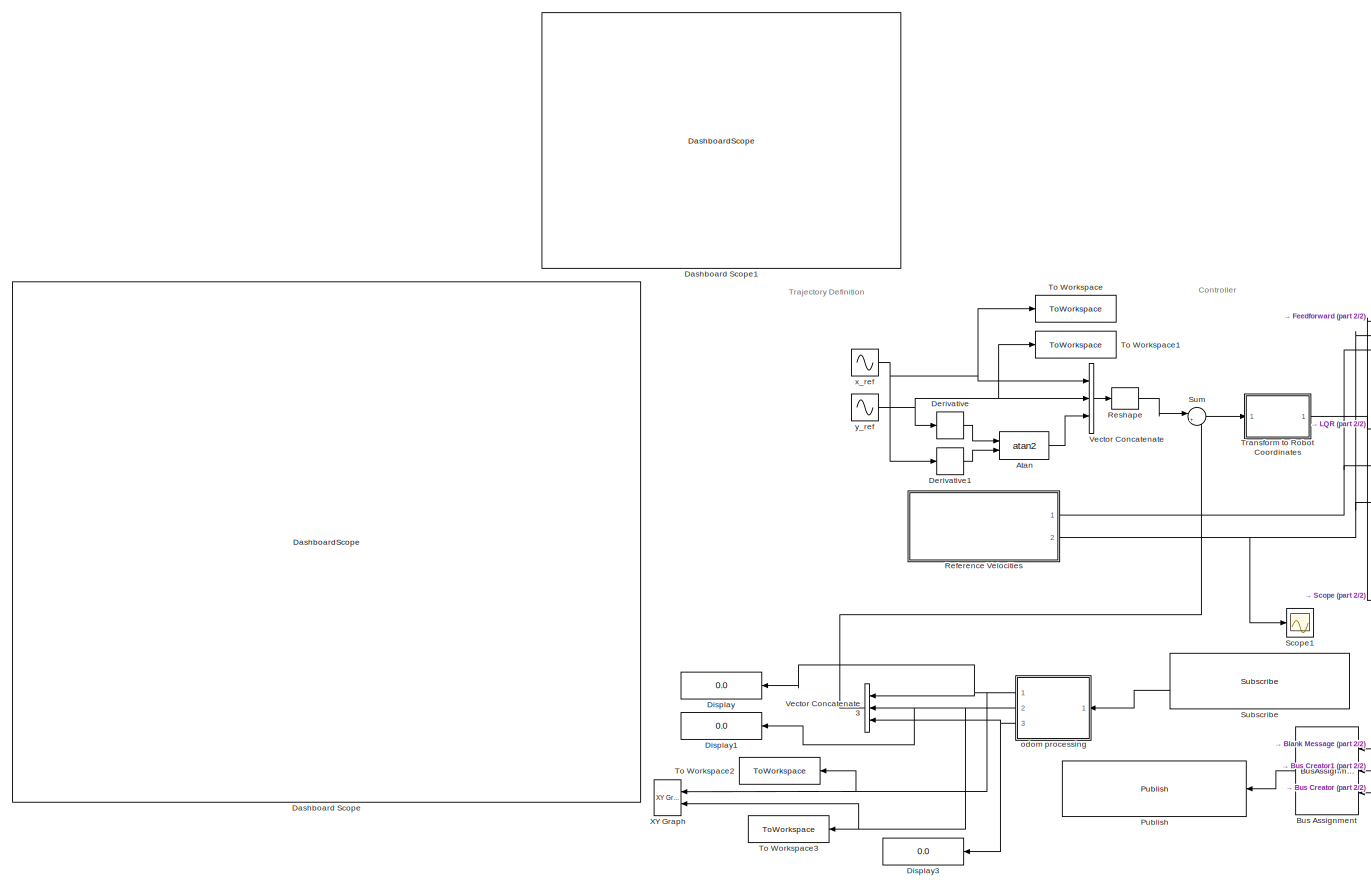
[diagram: root canvas - part 1/2, most of the canvas]
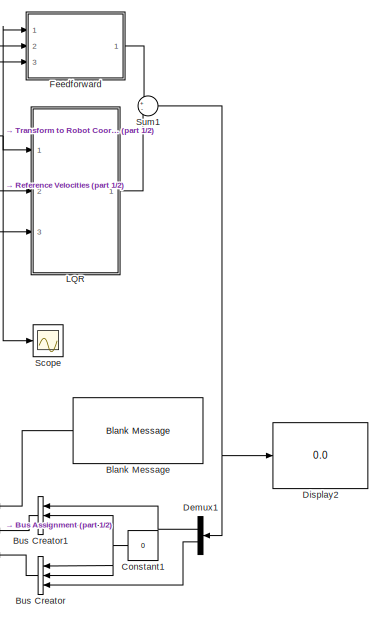
[diagram: root canvas - part 2/2, middle right region]
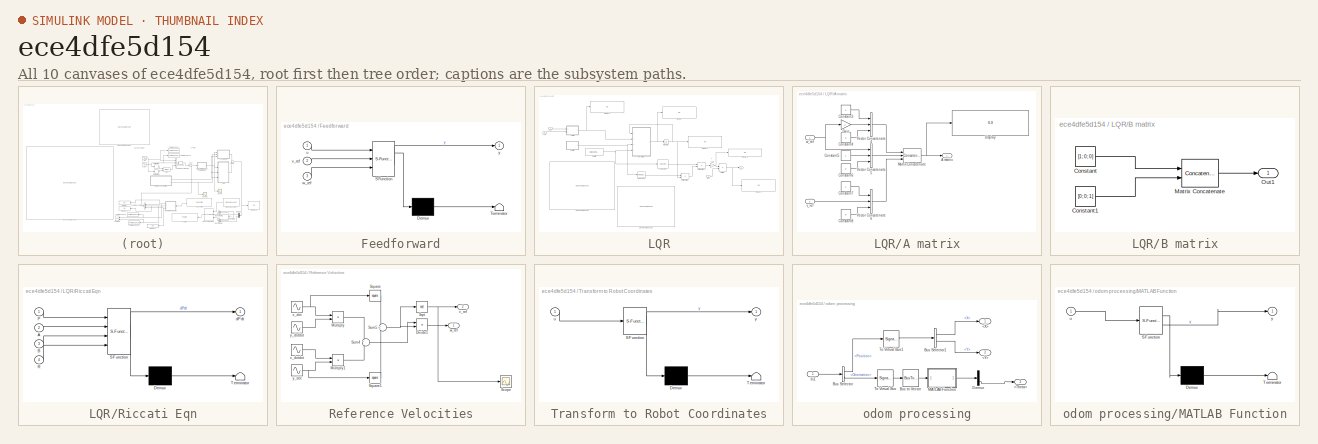
[diagram: thumbnail index - all 10 canvases of the model, root first then tree order]
MODEL slx_ece4dfe5d154
KIND model
CONFIG AbsTol = auto
CONFIG EnableMultiTasking = off
CONFIG FixedStep = auto
CONFIG MaxStep = auto
CONFIG MinStep = auto
CONFIG RelTol = 1e-3
CONFIG SampleTimeConstraint = Unconstrained
CONFIG Solver = VariableStepAuto
CONFIG SolverName = VariableStepAuto
CONFIG StartTime = 0.0
CONFIG StopTime = 15
BLOCK [Trigonometry] Atan
  Operator = atan2
  Ports = [2, 1]
BLOCK [Reference] Blank Message  REF=robotlib/Blank Message
  Ports = [0, 1]
  SourceBlock = robotlib/Blank Message
  SourceProductBaseCode = RR
  SourceType = ROS Blank Message
BLOCK [BusAssignment] Bus Assignment
  AssignedSignals = Linear,Angular
  Ports = [3, 1]
BLOCK [BusCreator] Bus Creator
  DisplayOption = bar
  InheritFromInputs = on
  Inputs = 3
  Ports = [3, 1]
BLOCK [BusCreator] Bus Creator1
  DisplayOption = bar
  InheritFromInputs = on
  Inputs = 3
  Ports = [3, 1]
BLOCK [Constant] Constant1
  Value = 0
BLOCK [DashboardScope] Dashboard Scope
BLOCK [DashboardScope] Dashboard Scope1
BLOCK [Demux] Demux1
  Outputs = 2
  Ports = [1, 2]
BLOCK [Derivative] Derivative
BLOCK [Derivative] Derivative1
BLOCK [Display] Display
  Decimation = 1
  Ports = [1]
BLOCK [Display] Display1
  Decimation = 1
  Ports = [1]
BLOCK [Display] Display2
  Decimation = 1
  Ports = [1]
BLOCK [Display] Display3
  Decimation = 1
  Ports = [1]
BLOCK [SubSystem] Feedforward
  ErrorFcn = Stateflow.Translate.translate
  PermitHierarchicalResolution = ExplicitOnly
  Ports = [3, 1]
  RequestExecContextInheritance = off
  SFBlockType = MATLAB Function
  TreatAsAtomicUnit = on
BLOCK [Demux] Feedforward/ Demux 
  Outputs = 1
  Ports = [1, 1]
BLOCK [S-Function] Feedforward/ SFunction 
  EnableBusSupport = on
  FunctionName = sf_sfun
  PortCounts = [3 2]
  Ports = [3, 2]
  SFcnIsStateOwnerBlock = off
  SFunctionDeploymentMode = off
  Tag = Stateflow S-Function 3
BLOCK [Terminator] Feedforward/ Terminator 
BLOCK [Inport] Feedforward/u
BLOCK [Inport] Feedforward/v_ref
  Port = 2
BLOCK [Inport] Feedforward/w_ref
  Port = 3
BLOCK [Outport] Feedforward/y
  VectorParamsAs1DForOutWhenUnconnected = off
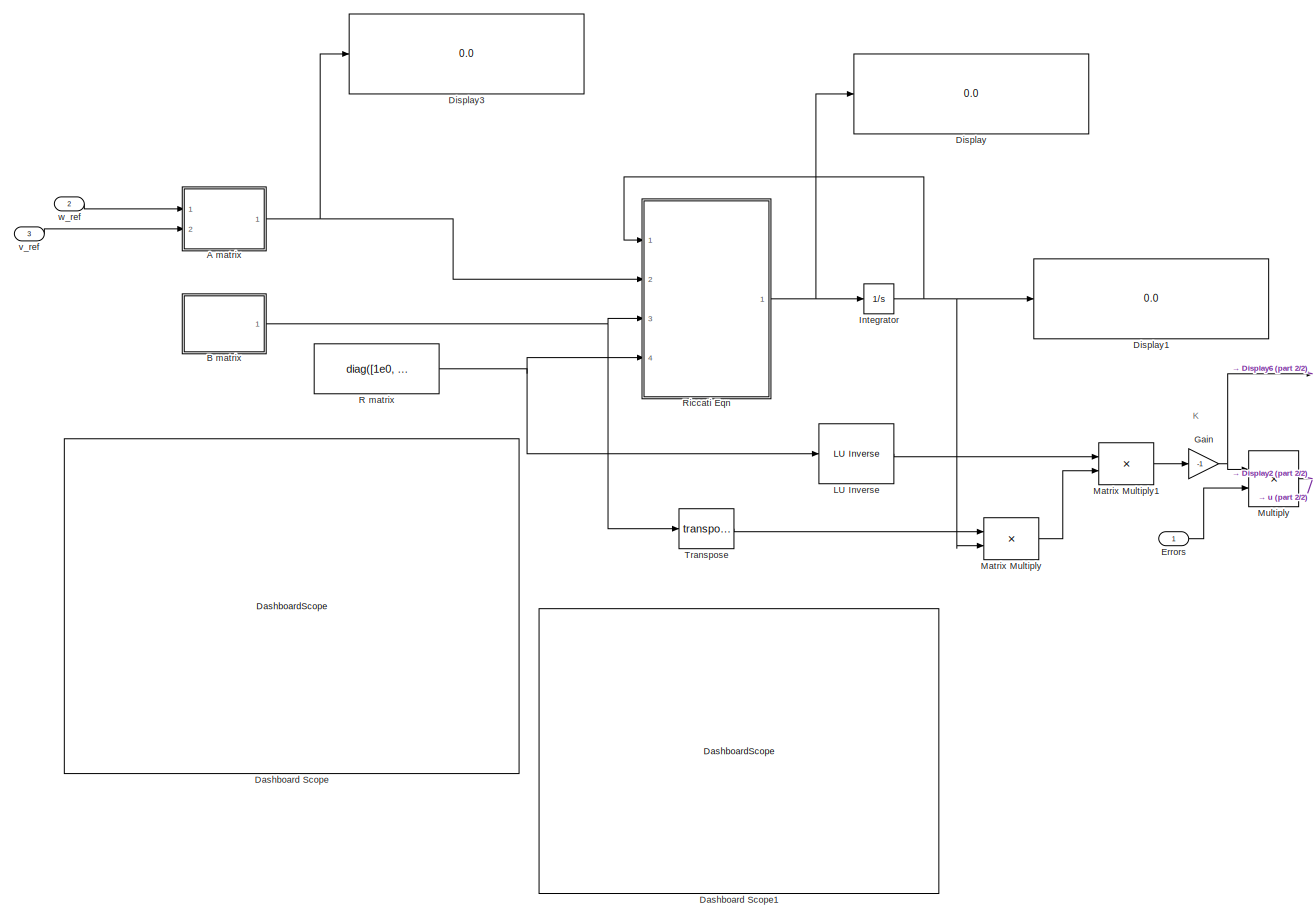
[diagram: LQR - part 1/2, most of the canvas]
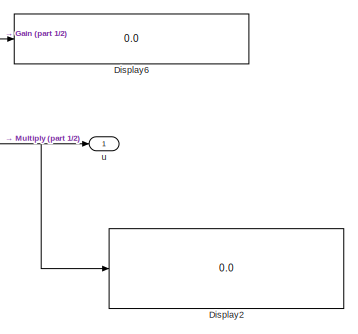
[diagram: LQR - part 2/2, middle right region]
BLOCK [SubSystem] LQR
  Ports = [3, 1]
  RequestExecContextInheritance = off
BLOCK [Reference] LQR/ LU Inverse  REF=dspinverses/ LU Inverse
  Ports = [1, 1]
  SourceBlock = dspinverses/ LU Inverse
  SourceProductBaseCode = DS
  SourceType = LU Inverse
BLOCK [SubSystem] LQR/A matrix
  Ports = [2, 1]
  RequestExecContextInheritance = off
BLOCK [Outport] LQR/A matrix/A matrix
  VectorParamsAs1DForOutWhenUnconnected = off
BLOCK [Constant] LQR/A matrix/Constant3
BLOCK [Constant] LQR/A matrix/Constant4
  Value = 0
BLOCK [Constant] LQR/A matrix/Constant5
BLOCK [Constant] LQR/A matrix/Constant6
  Value = 0
BLOCK [Constant] LQR/A matrix/Constant7
BLOCK [Constant] LQR/A matrix/Constant8
  Value = 0
BLOCK [Display] LQR/A matrix/Display
  Decimation = 1
  Ports = [1]
BLOCK [Gain] LQR/A matrix/Gain
  Gain = -1
BLOCK [Concatenate] LQR/A matrix/Matrix Concatenate
  ConcatenateDimension = 2
  Mode = Multidimensional array
  NumInputs = 3
  Ports = [3, 1]
BLOCK [Concatenate] LQR/A matrix/Vector Concatenate4
  NumInputs = 3
  Ports = [3, 1]
BLOCK [Concatenate] LQR/A matrix/Vector Concatenate5
  NumInputs = 3
  Ports = [3, 1]
BLOCK [Concatenate] LQR/A matrix/Vector Concatenate6
  NumInputs = 3
  Ports = [3, 1]
BLOCK [Inport] LQR/A matrix/v_ref
  Port = 2
  VarSizeSig = No
BLOCK [Inport] LQR/A matrix/w_ref
BLOCK [SubSystem] LQR/B matrix
  Ports = [0, 1]
  RequestExecContextInheritance = off
BLOCK [Constant] LQR/B matrix/Constant
  Value = [1; 0; 0]
  VectorParams1D = off
BLOCK [Constant] LQR/B matrix/Constant1
  Value = [0; 0; 1]
  VectorParams1D = off
BLOCK [Concatenate] LQR/B matrix/Matrix Concatenate
  ConcatenateDimension = 2
  Mode = Multidimensional array
  Ports = [2, 1]
BLOCK [Outport] LQR/B matrix/Out1
  VectorParamsAs1DForOutWhenUnconnected = off
BLOCK [DashboardScope] LQR/Dashboard Scope
BLOCK [DashboardScope] LQR/Dashboard Scope1
BLOCK [Display] LQR/Display
  Decimation = 1
  Ports = [1]
BLOCK [Display] LQR/Display1
  Decimation = 1
  Ports = [1]
BLOCK [Display] LQR/Display2
  Decimation = 1
  Ports = [1]
BLOCK [Display] LQR/Display3
  Decimation = 1
  Ports = [1]
BLOCK [Display] LQR/Display6
  Decimation = 1
  Ports = [1]
BLOCK [Inport] LQR/Errors
BLOCK [Gain] LQR/Gain
  Gain = -1
BLOCK [Integrator] LQR/Integrator
  Ports = [1, 1]
BLOCK [Product] LQR/Matrix Multiply
  Multiplication = Matrix(*)
  Ports = [2, 1]
BLOCK [Product] LQR/Matrix Multiply1
  Multiplication = Matrix(*)
  Ports = [2, 1]
BLOCK [Product] LQR/Multiply
  Multiplication = Matrix(*)
  Ports = [2, 1]
BLOCK [Constant] LQR/R matrix
  Value = diag([1e0, 1e0])
  VectorParams1D = off
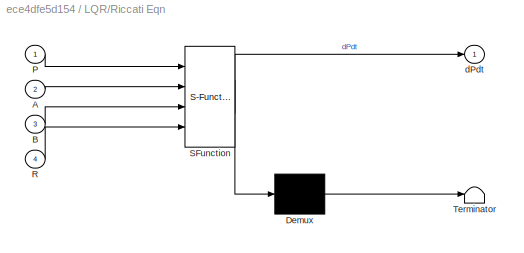
BLOCK [SubSystem] LQR/Riccati Eqn
  ErrorFcn = Stateflow.Translate.translate
  PermitHierarchicalResolution = ExplicitOnly
  Ports = [4, 1]
  RequestExecContextInheritance = off
  SFBlockType = MATLAB Function
  TreatAsAtomicUnit = on
BLOCK [Demux] LQR/Riccati Eqn/ Demux 
  Outputs = 1
  Ports = [1, 1]
BLOCK [S-Function] LQR/Riccati Eqn/ SFunction 
  EnableBusSupport = on
  FunctionName = sf_sfun
  PortCounts = [4 2]
  Ports = [4, 2]
  SFcnIsStateOwnerBlock = off
  SFunctionDeploymentMode = off
  Tag = Stateflow S-Function 8
BLOCK [Terminator] LQR/Riccati Eqn/ Terminator 
BLOCK [Inport] LQR/Riccati Eqn/A
  Port = 2
BLOCK [Inport] LQR/Riccati Eqn/B
  Port = 3
BLOCK [Inport] LQR/Riccati Eqn/P
BLOCK [Inport] LQR/Riccati Eqn/R
  Port = 4
BLOCK [Outport] LQR/Riccati Eqn/dPdt
  VectorParamsAs1DForOutWhenUnconnected = off
BLOCK [Math] LQR/Transpose
  Operator = transpose
  Ports = [1, 1]
  SignedPower = on
BLOCK [Outport] LQR/u
  VectorParamsAs1DForOutWhenUnconnected = off
BLOCK [Inport] LQR/v_ref
  Port = 3
BLOCK [Inport] LQR/w_ref
  Port = 2
BLOCK [Reference] Publish  REF=robotlib/Publish
  Ports = [1]
  SourceBlock = robotlib/Publish
  SourceProductBaseCode = RR
  SourceType = ROS Publish
BLOCK [SubSystem] Reference Velocities
  Ports = [0, 2]
  RequestExecContextInheritance = off
BLOCK [Product] Reference Velocities/Divide1
  Inputs = */
  Ports = [2, 1]
BLOCK [Product] Reference Velocities/Multiply
  Ports = [2, 1]
BLOCK [Product] Reference Velocities/Multiply1
  Ports = [2, 1]
BLOCK [Scope] Reference Velocities/Scope
  Floating = off
  NumInputPorts = 1
  Ports = [1]
  ScopeSpecificationString = Simulink.scopes.TimeScopeBlockCfg('CurrentConfiguration', extmgr.ConfigurationSet(extmgr.Configuration('Core','General UI',true),extmgr.Configuration('Core','Source UI',true),extmgr.Configuration('Sources','WiredSimulink',true),extmgr.Configuration('Visuals','Time Domain',true,'SerializedDisplays',{struct('MinYLimReal','0.08','MaxYLimReal','0.1','YLabelReal','','MinYLimMag','0.08','MaxYLimMag','0....<+1324ch>
BLOCK [Sqrt] Reference Velocities/Sqrt
BLOCK [Math] Reference Velocities/Square
  Operator = square
  Ports = [1, 1]
  SignedPower = on
BLOCK [Math] Reference Velocities/Square1
  Operator = square
  Ports = [1, 1]
  SignedPower = on
BLOCK [Sum] Reference Velocities/Sum4
  Inputs = +-
  Ports = [2, 1]
BLOCK [Sum] Reference Velocities/Sum5
  Ports = [2, 1]
BLOCK [Outport] Reference Velocities/v_ref
  Port = 2
  VectorParamsAs1DForOutWhenUnconnected = off
BLOCK [Outport] Reference Velocities/w_ref
  VectorParamsAs1DForOutWhenUnconnected = off
BLOCK [Sin] Reference Velocities/x_dot
  Amplitude = 1.5*pi/15
  Frequency = pi/15
  Ports = [0, 1]
  SampleTime = 0
BLOCK [Sin] Reference Velocities/x_dotdot
  Amplitude = -1.5*pi/15*pi/15
  Frequency = pi/15
  Phase = -pi/2
  Ports = [0, 1]
  SampleTime = 0
BLOCK [Sin] Reference Velocities/y_dot
  Amplitude = -1.5*pi/15
  Frequency = pi/15
  Phase = -pi/2
  Ports = [0, 1]
  SampleTime = 0
BLOCK [Sin] Reference Velocities/y_dotdot
  Amplitude = -1.5*pi/15*pi/15
  Frequency = pi/15
  Ports = [0, 1]
  SampleTime = 0
BLOCK [Reshape] Reshape
  OutputDimensionality = Column vector (2-D)
  Ports = [1, 1]
BLOCK [Scope] Scope
  Floating = off
  NumInputPorts = 1
  Ports = [1]
  ScopeSpecificationString = Simulink.scopes.TimeScopeBlockCfg('CurrentConfiguration', extmgr.ConfigurationSet(extmgr.Configuration('Core','General UI',true),extmgr.Configuration('Core','Source UI',true),extmgr.Configuration('Sources','WiredSimulink',true,'DataLoggingVariableName','ScopeData1'),extmgr.Configuration('Visuals','Time Domain',true,'SerializedDisplays',{struct('MinYLimReal','-1.94666','MaxYLimReal','2.10277','YLab...<+1491ch>
BLOCK [Scope] Scope1
  Floating = off
  NumInputPorts = 1
  Ports = [1]
  ScopeSpecificationString = Simulink.scopes.TimeScopeBlockCfg('CurrentConfiguration', extmgr.ConfigurationSet(extmgr.Configuration('Core','General UI',true),extmgr.Configuration('Core','Source UI',true),extmgr.Configuration('Sources','WiredSimulink',true,'DataLoggingVariableName','ScopeData1'),extmgr.Configuration('Visuals','Time Domain',true,'SerializedDisplays',{struct('MinYLimReal','0.21416','MaxYLimReal','0.41416','YLabe...<+1408ch>
BLOCK [Reference] Subscribe  REF=robotlib/Subscribe
  Ports = [0, 2]
  SourceBlock = robotlib/Subscribe
  SourceProductBaseCode = RR
  SourceType = ROS Subscribe
BLOCK [Sum] Sum
  Inputs = |+-
  Ports = [2, 1]
BLOCK [Sum] Sum1
  Inputs = +-
  Ports = [2, 1]
BLOCK [ToWorkspace] To Workspace
  FixptAsFi = on
  MaxDataPoints = inf
  Ports = [1]
  SampleTime = -1
  VariableName = x_ref
BLOCK [ToWorkspace] To Workspace1
  FixptAsFi = on
  MaxDataPoints = inf
  Ports = [1]
  SampleTime = -1
  VariableName = y_ref
BLOCK [ToWorkspace] To Workspace2
  FixptAsFi = on
  MaxDataPoints = inf
  Ports = [1]
  SampleTime = -1
  VariableName = x_est
BLOCK [ToWorkspace] To Workspace3
  FixptAsFi = on
  MaxDataPoints = inf
  Ports = [1]
  SampleTime = -1
  VariableName = y_est
BLOCK [SubSystem] Transform to Robot Coordinates
  ErrorFcn = Stateflow.Translate.translate
  PermitHierarchicalResolution = ExplicitOnly
  Ports = [1, 1]
  RequestExecContextInheritance = off
  SFBlockType = MATLAB Function
  TreatAsAtomicUnit = on
BLOCK [Demux] Transform to Robot Coordinates/ Demux 
  Outputs = 1
  Ports = [1, 1]
BLOCK [S-Function] Transform to Robot Coordinates/ SFunction 
  EnableBusSupport = on
  FunctionName = sf_sfun
  PortCounts = [1 2]
  Ports = [1, 2]
  SFcnIsStateOwnerBlock = off
  SFunctionDeploymentMode = off
  Tag = Stateflow S-Function 2
BLOCK [Terminator] Transform to Robot Coordinates/ Terminator 
BLOCK [Inport] Transform to Robot Coordinates/u
BLOCK [Outport] Transform to Robot Coordinates/y
  VectorParamsAs1DForOutWhenUnconnected = off
BLOCK [Concatenate] Vector Concatenate
  NumInputs = 3
  Ports = [3, 1]
BLOCK [Concatenate] Vector Concatenate3
  NumInputs = 3
  Ports = [3, 1]
BLOCK [Reference] XY Graph  REF=simulink/Sinks/XY Graph
  Ports = [2]
  SourceBlock = simulink/Sinks/XY Graph
  SourceProductBaseCode = SL
  SourceType = XY scope.
BLOCK [SubSystem] odom processing
  Ports = [1, 3]
  RequestExecContextInheritance = off
BLOCK [Outport] odom processing/<Theta>
  Port = 3
BLOCK [Outport] odom processing/<X>
BLOCK [Outport] odom processing/<Y>
  Port = 2
BLOCK [BusSelector] odom processing/Bus Selector
  OutputSignals = Pose.Pose.Position,Pose.Pose.Orientation
  Ports = [1, 2]
BLOCK [BusSelector] odom processing/Bus Selector1
  OutputSignals = X,Y
  Ports = [1, 2]
BLOCK [BusToVector] odom processing/Bus to Vector
BLOCK [Demux] odom processing/Demux
  Outputs = 3
  Ports = [1, 3]
BLOCK [Inport] odom processing/In1
BLOCK [SubSystem] odom processing/MATLAB Function
  ErrorFcn = Stateflow.Translate.translate
  PermitHierarchicalResolution = ExplicitOnly
  Ports = [1, 1]
  RequestExecContextInheritance = off
  SFBlockType = MATLAB Function
  TreatAsAtomicUnit = on
BLOCK [Demux] odom processing/MATLAB Function/ Demux 
  Outputs = 1
  Ports = [1, 1]
BLOCK [S-Function] odom processing/MATLAB Function/ SFunction 
  EnableBusSupport = on
  FunctionName = sf_sfun
  PortCounts = [1 2]
  Ports = [1, 2]
  SFcnIsStateOwnerBlock = off
  SFunctionDeploymentMode = off
  Tag = Stateflow S-Function 1
BLOCK [Terminator] odom processing/MATLAB Function/ Terminator 
BLOCK [Inport] odom processing/MATLAB Function/u
BLOCK [Outport] odom processing/MATLAB Function/y
BLOCK [SignalConversion] odom processing/To Virtual Bus
  ConversionOutput = Virtual bus
  OverrideOpt = off
BLOCK [SignalConversion] odom processing/To Virtual Bus1
  ConversionOutput = Virtual bus
  OverrideOpt = off
BLOCK [Sin] x_ref
  Amplitude = 1.5
  Bias = 1.5
  Frequency = pi/15
  Phase = -pi/2
  Ports = [0, 1]
  SampleTime = 0
BLOCK [Sin] y_ref
  Amplitude = 1.5
  Frequency = pi/15
  Ports = [0, 1]
  SampleTime = 0
ANNOTATION (root): Controller
ANNOTATION (root): Trajectory Definition
ANNOTATION LQR: K
LINE Atan:1 -> Vector Concatenate:3
LINE Blank Message:1 -> Bus Assignment:1
LINE Bus Assignment:1 -> Publish:1
LINE Bus Creator1:1 -> Bus Assignment:2
LINE Bus Creator:1 -> Bus Assignment:3
NET Constant1:1 -> Bus Creator1:2, Bus Creator1:3, Bus Creator:1, Bus Creator:2
LINE Demux1:1 -> Bus Creator1:1
LINE Demux1:2 -> Bus Creator:3
LINE Derivative1:1 -> Atan:2
LINE Derivative:1 -> Atan:1
LINE Feedforward:1 -> Sum1:1
LINE LQR/ LU Inverse:1 -> LQR/Matrix Multiply1:1
LINE LQR/A matrix/Constant3:1 -> LQR/A matrix/Vector Concatenate4:1
LINE LQR/A matrix/Constant4:1 -> LQR/A matrix/Vector Concatenate4:3
LINE LQR/A matrix/Constant5:1 -> LQR/A matrix/Vector Concatenate5:2
LINE LQR/A matrix/Constant6:1 -> LQR/A matrix/Vector Concatenate5:3
LINE LQR/A matrix/Constant7:1 -> LQR/A matrix/Vector Concatenate6:1
LINE LQR/A matrix/Constant8:1 -> LQR/A matrix/Vector Concatenate6:3
LINE LQR/A matrix/Gain:1 -> LQR/A matrix/Vector Concatenate4:2
NET LQR/A matrix/Matrix Concatenate:1 -> LQR/A matrix/A matrix:1, LQR/A matrix/Display:1
LINE LQR/A matrix/Vector Concatenate4:1 -> LQR/A matrix/Matrix Concatenate:1
LINE LQR/A matrix/Vector Concatenate5:1 -> LQR/A matrix/Matrix Concatenate:2
LINE LQR/A matrix/Vector Concatenate6:1 -> LQR/A matrix/Matrix Concatenate:3
LINE LQR/A matrix/v_ref:1 -> LQR/A matrix/Vector Concatenate6:2
NET LQR/A matrix/w_ref:1 -> LQR/A matrix/Gain:1, LQR/A matrix/Vector Concatenate5:1
NET LQR/A matrix:1 -> LQR/Display3:1, LQR/Riccati Eqn:2
LINE LQR/B matrix/Constant1:1 -> LQR/B matrix/Matrix Concatenate:2
LINE LQR/B matrix/Constant:1 -> LQR/B matrix/Matrix Concatenate:1
LINE LQR/B matrix/Matrix Concatenate:1 -> LQR/B matrix/Out1:1
NET LQR/B matrix:1 -> LQR/Riccati Eqn:3, LQR/Transpose:1
LINE LQR/Errors:1 -> LQR/Multiply:2
NET LQR/Gain:1 -> LQR/Display6:1, LQR/Multiply:1
NET LQR/Integrator:1 -> LQR/Display1:1, LQR/Matrix Multiply:2, LQR/Riccati Eqn:1
LINE LQR/Matrix Multiply1:1 -> LQR/Gain:1
LINE LQR/Matrix Multiply:1 -> LQR/Matrix Multiply1:2
NET LQR/Multiply:1 -> LQR/Display2:1, LQR/u:1
NET LQR/R matrix:1 -> LQR/ LU Inverse:1, LQR/Riccati Eqn:4
NET LQR/Riccati Eqn:1 -> LQR/Display:1, LQR/Integrator:1
LINE LQR/Transpose:1 -> LQR/Matrix Multiply:1
LINE LQR/v_ref:1 -> LQR/A matrix:2
LINE LQR/w_ref:1 -> LQR/A matrix:1
LINE LQR:1 -> Sum1:2
LINE Reference Velocities/Divide1:1 -> Reference Velocities/w_ref:1
LINE Reference Velocities/Multiply1:1 -> Reference Velocities/Sum4:2
LINE Reference Velocities/Multiply:1 -> Reference Velocities/Sum4:1
NET Reference Velocities/Sqrt:1 -> Reference Velocities/Scope:1, Reference Velocities/v_ref:1
LINE Reference Velocities/Square1:1 -> Reference Velocities/Sum5:2
LINE Reference Velocities/Square:1 -> Reference Velocities/Sum5:1
LINE Reference Velocities/Sum4:1 -> Reference Velocities/Divide1:1
NET Reference Velocities/Sum5:1 -> Reference Velocities/Divide1:2, Reference Velocities/Sqrt:1
NET Reference Velocities/x_dot:1 -> Reference Velocities/Multiply:1, Reference Velocities/Square:1
LINE Reference Velocities/x_dotdot:1 -> Reference Velocities/Multiply1:1
NET Reference Velocities/y_dot:1 -> Reference Velocities/Multiply1:2, Reference Velocities/Square1:1
LINE Reference Velocities/y_dotdot:1 -> Reference Velocities/Multiply:2
NET Reference Velocities:1 -> Feedforward:3, LQR:2
NET Reference Velocities:2 -> Feedforward:2, LQR:3, Scope1:1
LINE Reshape:1 -> Sum:1
LINE Subscribe:2 -> odom processing:1
NET Sum1:1 -> Demux1:1, Display2:1
LINE Sum:1 -> Transform to Robot Coordinates:1
NET Transform to Robot Coordinates:1 -> Feedforward:1, LQR:1, Scope:1
LINE Vector Concatenate3:1 -> Sum:2
LINE Vector Concatenate:1 -> Reshape:1
LINE odom processing/Bus Selector1:1 -> odom processing/<X>:1
LINE odom processing/Bus Selector1:2 -> odom processing/<Y>:1
LINE odom processing/Bus Selector:1 -> odom processing/To Virtual Bus1:1
LINE odom processing/Bus Selector:2 -> odom processing/To Virtual Bus:1
LINE odom processing/Bus to Vector:1 -> odom processing/MATLAB Function:1
LINE odom processing/Demux:3 -> odom processing/<Theta>:1
LINE odom processing/In1:1 -> odom processing/Bus Selector:1
LINE odom processing/MATLAB Function:1 -> odom processing/Demux:1
LINE odom processing/To Virtual Bus1:1 -> odom processing/Bus Selector1:1
LINE odom processing/To Virtual Bus:1 -> odom processing/Bus to Vector:1
NET odom processing:1 -> Display:1, To Workspace2:1, Vector Concatenate3:1, XY Graph:1
NET odom processing:2 -> Display1:1, To Workspace3:1, Vector Concatenate3:2, XY Graph:2
NET odom processing:3 -> Display3:1, Vector Concatenate3:3
NET x_ref:1 -> Derivative1:1, To Workspace:1, Vector Concatenate:1
NET y_ref:1 -> Derivative:1, To Workspace1:1, Vector Concatenate:2
note: NET lines group one-source signal fan-out (src -> all destinations, sorted); 1:1 wires keep LINE
CHART odom processing/MATLAB Function states=1 transitions=1
  STATE_LABEL 'eML_blk_kernel()'
  STATE_LABEL "SCRIPT:\nfunction y = fcn(u)\n\ny = quat2eul(u');\n\n\n"
CHART Transform to 
Robot Coordinates states=1 transitions=1
  STATE_LABEL 'eML_blk_kernel()'
  STATE_LABEL 'SCRIPT:\nfunction y = fcn(u)\n\ntheta = u(3);\nA = [cos(theta), sin(theta), 0;\n    -sin(theta), cos(theta), 0;\n    0, 0, 1];\n\ny = A*u;\n\n'
CHART Feedforward states=1 transitions=1
  STATE_LABEL 'eML_blk_kernel()'
  STATE_LABEL 'SCRIPT:\nfunction y = fcn(u, v_ref, w_ref)\n\n    e3 = u(3);\n    \n    y = [cos(e3)*v_ref;\n        w_ref];\n\n'
CHART LQR/Riccati Eqn states=1 transitions=1
  STATE_LABEL 'eML_blk_kernel()'
  STATE_LABEL "SCRIPT:\nfunction dPdt = mRiccati(P,A,B,R)\n\n\n% Q = diag([0.1 0.1 0.6]);\nQ = diag([5.5 5.5 216.5]);\n\n\n% P2 = (A'*P - (P*B)*pinv(R)*(B'*P) + Q)*pinv(-A);\n\n% Continuous Riccati differential equation\ndPdt = A.'*P + P*A - (P*B)*inv(R)*(B.'*P) + Q; \n"
CHART  states=0 transitions=0
CHART  states=0 transitions=0
CHART  states=0 transitions=0
CHART  states=0 transitions=0
